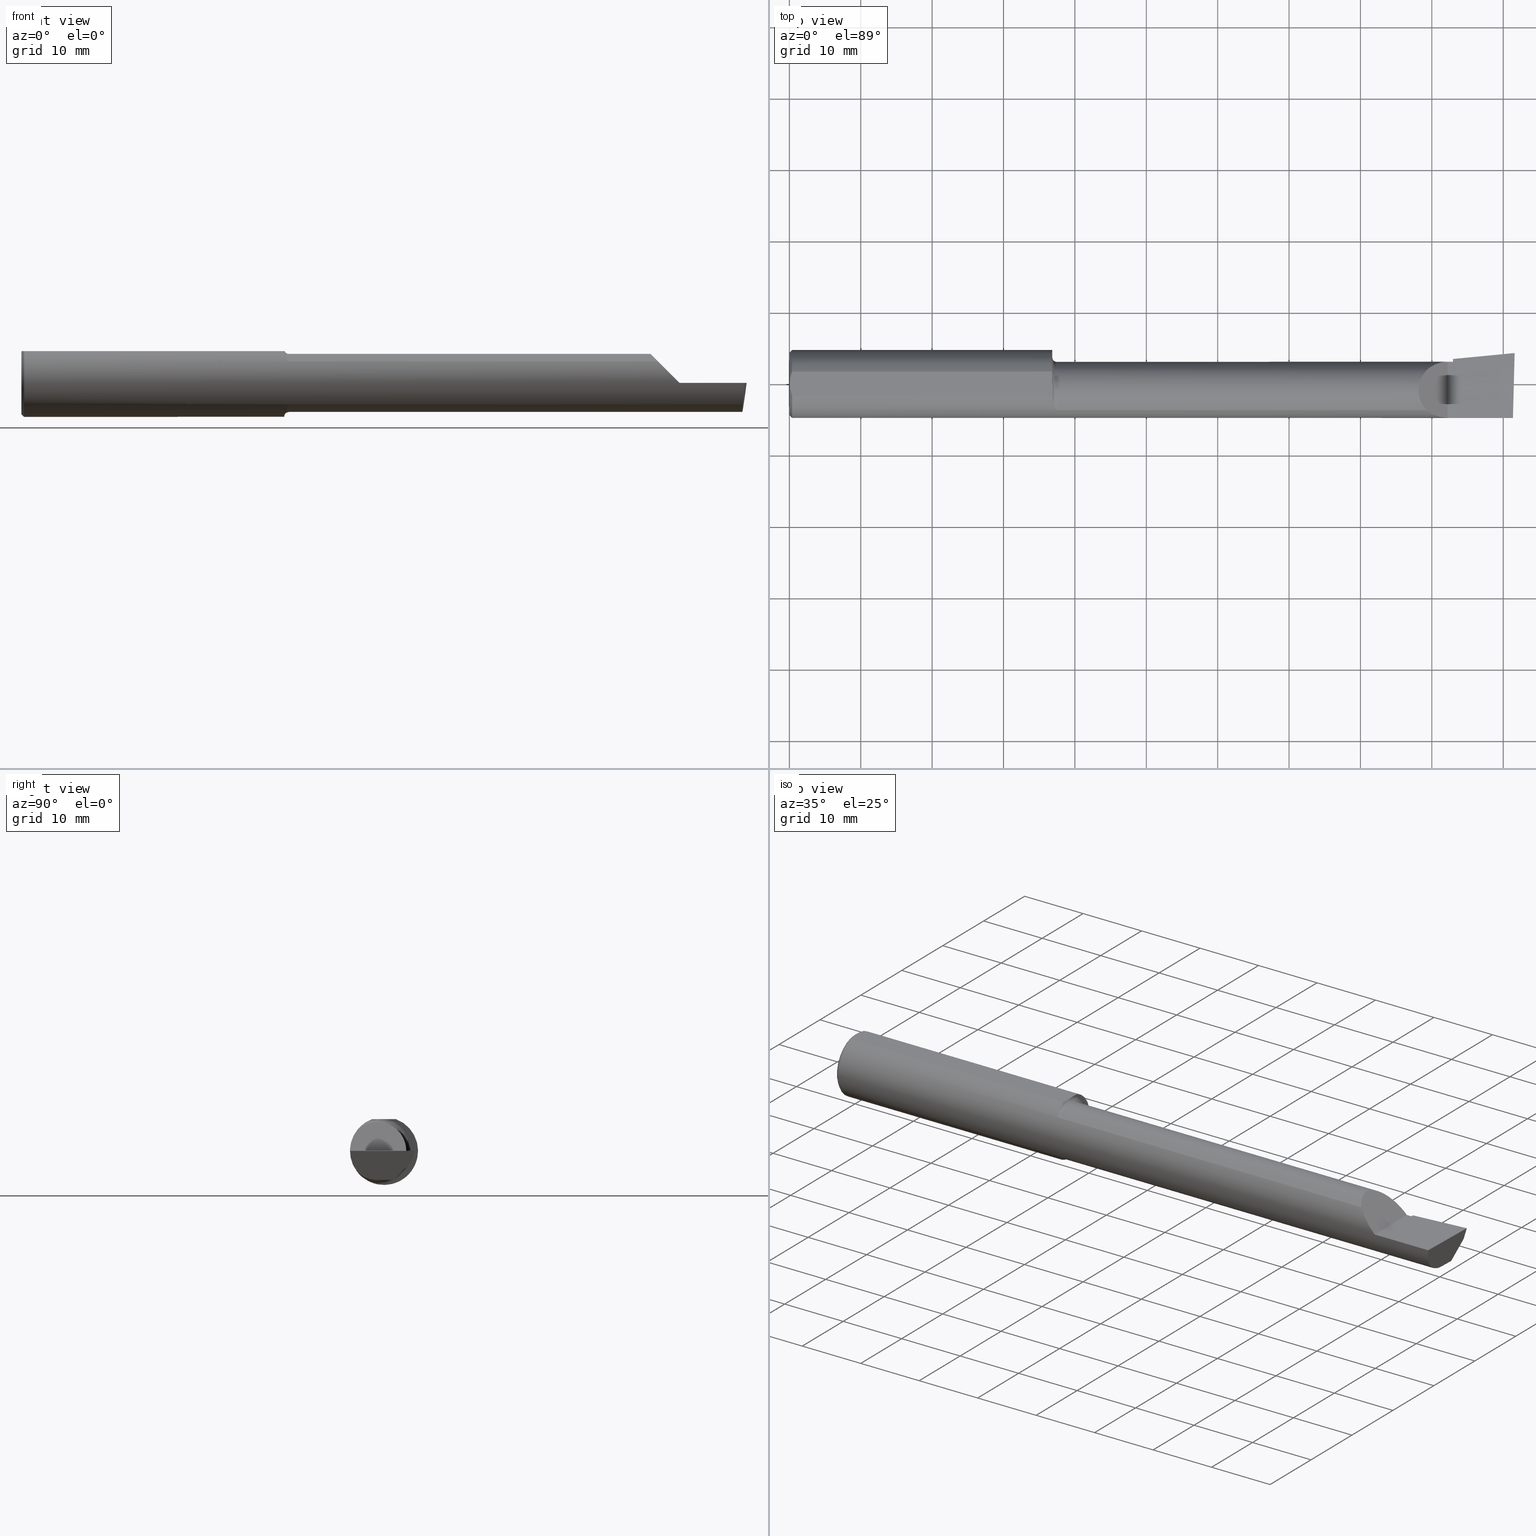
[diagram: canonical four-view strip — front | top / right | iso, engineering-drawing reading convention]
A machine part, canonical four-view strip (front | top / right | iso — engineering-drawing reading convention). The complete STEP part file that produces these views, byte-faithful:
ISO-10303-21;
HEADER;
FILE_DESCRIPTION (( 'STEP AP203' ),
    '1' );
FILE_NAME ('217540-B3602500.STEP',
    '2024-04-26T22:35:02',
    ( '' ),
    ( '' ),
    'SwSTEP 2.0',
    'SolidWorks 2022',
    '' );
FILE_SCHEMA (( 'CONFIG_CONTROL_DESIGN' ));
ENDSEC;

DATA;
#1 = ORIENTED_EDGE ( 'NONE', *, *, #440, .F. ) ;
#2 = CARTESIAN_POINT ( 'NONE',  ( 0.01499999999999999424, 0.000000000000000000, 0.000000000000000000 ) ) ;
#3 = ORIENTED_EDGE ( 'NONE', *, *, #588, .F. ) ;
#4 = CARTESIAN_POINT ( 'NONE',  ( 0.01125230581755086272, 0.05532998191409921329, 0.1753500000000000059 ) ) ;
#5 = AXIS2_PLACEMENT_3D ( 'NONE', #621, #263, #167 ) ;
#6 = ORIENTED_EDGE ( 'NONE', *, *, #487, .F. ) ;
#7 = CARTESIAN_POINT ( 'NONE',  ( 3.511965325165093521, -0.1454917112299462245, 0.1180346748349056230 ) ) ;
#8 = ORIENTED_EDGE ( 'NONE', *, *, #462, .F. ) ;
#9 = CARTESIAN_POINT ( 'NONE',  ( 1.450000000000000178, 0.06597272163553663527, 0.1753499999999999781 ) ) ;
#10 = CARTESIAN_POINT ( 'NONE',  ( 3.653138950307088795, 0.06907189645309849690, -0.1232356714654834345 ) ) ;
#11 = EDGE_LOOP ( 'NONE', ( #238, #1, #240 ) ) ;
#12 = LINE ( 'NONE', #464, #87 ) ;
#13 = AXIS2_PLACEMENT_3D ( 'NONE', #262, #421, #360 ) ;
#14 = DIRECTION ( 'NONE',  ( 0.9953961983671787417, 0.09584575252022450864, -8.704446866213619353E-17 ) ) ;
#15 = ORIENTED_EDGE ( 'NONE', *, *, #630, .F. ) ;
#16 = CARTESIAN_POINT ( 'NONE',  ( 4.000000000000000000, 0.2373500000000000332, 0.1753499999999999504 ) ) ;
#17 = CARTESIAN_POINT ( 'NONE',  ( 3.655646474132026924, 0.04303026584322402343, -0.1383725942388458752 ) ) ;
#18 = EDGE_CURVE ( 'NONE', #601, #157, #642, .T. ) ;
#19 = VERTEX_POINT ( 'NONE', #386 ) ;
#20 = CARTESIAN_POINT ( 'NONE',  ( 1.450000000000000178, 0.1476499999999997259, 0.000000000000000000 ) ) ;
#21 = CARTESIAN_POINT ( 'NONE',  ( 1.450000000000000622, 0.01439074984011678125, 0.1753499999999999781 ) ) ;
#22 = CARTESIAN_POINT ( 'NONE',  ( 1.458327409769773375, -0.1182546610979341717, 0.1455684145307624688 ) ) ;
#23 = LENGTH_MEASURE_WITH_UNIT ( LENGTH_MEASURE( 0.02539999999999999897 ), #216 );
#24 = DIRECTION ( 'NONE',  ( 0.06894566448119619773, -0.7160281025913032282, 0.6946583704589937014 ) ) ;
#25 = AXIS2_PLACEMENT_3D ( 'NONE', #279, #32, #227 ) ;
#26 = APPROVAL_PERSON_ORGANIZATION ( #393, #126, #392 ) ;
#27 = CARTESIAN_POINT ( 'NONE',  ( 1.474999999999999867, -0.1454917112299478343, 0.1180346748349037911 ) ) ;
#28 = CARTESIAN_POINT ( 'NONE',  ( 3.974646882977779239, -0.1156304438478838320, -0.1453804992321581224 ) ) ;
#29 = EDGE_CURVE ( 'NONE', #474, #651, #586, .T. ) ;
#30 = DIRECTION ( 'NONE',  ( 1.000000000000000000, -4.268512490100411279E-18, 0.000000000000000000 ) ) ;
#31 = DIRECTION ( 'NONE',  ( 1.000000000000000000, -4.268512490100411279E-18, 0.000000000000000000 ) ) ;
#32 = DIRECTION ( 'NONE',  ( -1.000000000000000000, 4.268512490100411279E-18, 0.000000000000000000 ) ) ;
#33 = PERSON_AND_ORGANIZATION_ROLE ( 'creator' ) ;
#34 = AXIS2_PLACEMENT_3D ( 'NONE', #435, #79, #485 ) ;
#35 = CARTESIAN_POINT ( 'NONE',  ( 1.474999999999999867, -0.1454917112299472515, -0.1180346748349042907 ) ) ;
#36 = EDGE_CURVE ( 'NONE', #358, #354, #172, .T. ) ;
#37 = COORDINATED_UNIVERSAL_TIME_OFFSET ( 8, 0, .BEHIND. ) ;
#38 =( BOUNDED_CURVE ( )  B_SPLINE_CURVE ( 3, ( #72, #270, #217, #634 ),
 .UNSPECIFIED., .F., .T. ) 
 B_SPLINE_CURVE_WITH_KNOTS ( ( 4, 4 ),
 ( 2.858349069045824198, 2.874607299638503033 ),
 .UNSPECIFIED. ) 
 CURVE ( )  GEOMETRIC_REPRESENTATION_ITEM ( )  RATIONAL_B_SPLINE_CURVE ( ( 1.000000000000000000, 0.9999779726161355242, 0.9999779726161355242, 1.000000000000000000 ) ) 
 REPRESENTATION_ITEM ( '' )  );
#39 = DIRECTION ( 'NONE',  ( 1.000000000000000000, 0.000000000000000000, 0.000000000000000000 ) ) ;
#40 = ORIENTED_EDGE ( 'NONE', *, *, #584, .T. ) ;
#41 = CARTESIAN_POINT ( 'NONE',  ( 1.450000000000000178, -0.03015080213903878134, -0.1849079544810674769 ) ) ;
#42 = CARTESIAN_POINT ( 'NONE',  ( 3.977259974483411398, 0.05296767626088370873, -0.1600499999999999701 ) ) ;
#43 = VECTOR ( 'NONE', #104, 39.37007874015748854 ) ;
#44 = EDGE_LOOP ( 'NONE', ( #298, #463, #92, #205, #453, #249 ) ) ;
#45 = APPROVAL_PERSON_ORGANIZATION ( #552, #295, #349 ) ;
#46 = CARTESIAN_POINT ( 'NONE',  ( 1.455627379275792554, -0.1060494212093238825, -0.1548887329701209292 ) ) ;
#47 = ADVANCED_FACE ( 'NONE', ( #242 ), #124, .F. ) ;
#48 = ORIENTED_EDGE ( 'NONE', *, *, #183, .F. ) ;
#49 = CYLINDRICAL_SURFACE ( 'NONE', #438, 0.1600499999999999423 ) ;
#50 = EDGE_LOOP ( 'NONE', ( #302, #171, #528 ) ) ;
#51 = DIRECTION ( 'NONE',  ( 0.7071067811865390240, 8.659560562355036396E-17, 0.7071067811865560104 ) ) ;
#52 = ORIENTED_EDGE ( 'NONE', *, *, #258, .F. ) ;
#53 = LINE ( 'NONE', #253, #266 ) ;
#54 = AXIS2_PLACEMENT_3D ( 'NONE', #299, #501, #504 ) ;
#55 = CARTESIAN_POINT ( 'NONE',  ( 1.467580983404113137, -0.1407350872998855973, 0.1236837232298104716 ) ) ;
#56 = LINE ( 'NONE', #208, #399 ) ;
#57 = PERSON ( 'UNSPECIFIED', 'UNSPECIFIED', 'UNSPECIFIED', ('UNSPECIFIED'), ('UNSPECIFIED'), ('UNSPECIFIED') ) ;
#58 = LINE ( 'NONE', #571, #288 ) ;
#59 = EDGE_CURVE ( 'NONE', #141, #69, #641, .T. ) ;
#60 = VERTEX_POINT ( 'NONE', #42 ) ;
#61 = CARTESIAN_POINT ( 'NONE',  ( 1.474999999999999867, -0.03739999999999999575, 0.000000000000000000 ) ) ;
#62 = CARTESIAN_POINT ( 'NONE',  ( 4.000000000000000000, -0.03740000000000000269, -0.1600499999999999701 ) ) ;
#63 = ORIENTED_EDGE ( 'NONE', *, *, #532, .F. ) ;
#64 = CARTESIAN_POINT ( 'NONE',  ( 0.003000000000000171366, 0.01127363201155561975, 0.1753499999999999781 ) ) ;
#65 = ADVANCED_FACE ( 'NONE', ( #652 ), #368, .F. ) ;
#66 = AXIS2_PLACEMENT_3D ( 'NONE', #241, #545, #193 ) ;
#67 = CARTESIAN_POINT ( 'NONE',  ( 3.648392528813626079, 0.1183653683724363026, -0.06000000000000001860 ) ) ;
#68 = LOCAL_TIME ( 15, 35, 2.000000000000000000, #596 ) ;
#69 = VERTEX_POINT ( 'NONE', #194 ) ;
#70 = CARTESIAN_POINT ( 'NONE',  ( 1.451116380138691264, -0.06597272163553656588, 0.1753499999999999781 ) ) ;
#71 = DIMENSIONAL_EXPONENTS ( 1.000000000000000000, 0.000000000000000000, 0.000000000000000000, 0.000000000000000000, 0.000000000000000000, 0.000000000000000000, 0.000000000000000000 ) ;
#72 = CARTESIAN_POINT ( 'NONE',  ( 3.649771696492880135, 0.1040421643832924459, -0.07490071184287706851 ) ) ;
#73 = CARTESIAN_POINT ( 'NONE',  ( 1.453931069367344620, -0.09745462642916734308, 0.1609342754328614566 ) ) ;
#74 = CARTESIAN_POINT ( 'NONE',  ( 6.831754240405861070E-19, 0.1226499999999999257, 1.790477306702064235E-16 ) ) ;
#75 = DIRECTION ( 'NONE',  ( 4.268512490100411279E-18, 1.000000000000000000, -3.732688574539098315E-34 ) ) ;
#76 = CARTESIAN_POINT ( 'NONE',  ( 3.629999999999999893, 0.1226499999999998147, -1.383850883036508279E-16 ) ) ;
#77 = AXIS2_PLACEMENT_3D ( 'NONE', #129, #635, #178 ) ;
#78 = CARTESIAN_POINT ( 'NONE',  ( 3.659999999999999698, -0.2500000000000000555, -1.410085000307074674E-16 ) ) ;
#79 = DIRECTION ( 'NONE',  ( -1.000000000000000000, -0.000000000000000000, -0.000000000000000000 ) ) ;
#80 = ORIENTED_EDGE ( 'NONE', *, *, #29, .T. ) ;
#81 = CARTESIAN_POINT ( 'NONE',  ( 1.470462485058697810, -0.1437494271365432619, 0.1201537477313796703 ) ) ;
#82 = PERSON_AND_ORGANIZATION ( #57, #334 ) ;
#83 = VERTEX_POINT ( 'NONE', #123 ) ;
#84 = CARTESIAN_POINT ( 'NONE',  ( 1.457485333659844340, -0.1155414972264656309, -0.1479248906558518484 ) ) ;
#85 = CC_DESIGN_DATE_AND_TIME_ASSIGNMENT ( #237, #543, ( #439 ) ) ;
#86 = ADVANCED_FACE ( 'NONE', ( #329 ), #589, .T. ) ;
#87 = VECTOR ( 'NONE', #408, 39.37007874015748854 ) ;
#88 =( GEOMETRIC_REPRESENTATION_CONTEXT ( 3 ) GLOBAL_UNCERTAINTY_ASSIGNED_CONTEXT ( ( #359 ) ) GLOBAL_UNIT_ASSIGNED_CONTEXT ( ( #222, #431, #380 ) ) REPRESENTATION_CONTEXT ( 'NONE', 'WORKASPACE' ) );
#89 = DIRECTION ( 'NONE',  ( 0.000000000000000000, 1.000000000000000000, 0.000000000000000000 ) ) ;
#90 = ADVANCED_FACE ( 'NONE', ( #498 ), #390, .F. ) ;
#91 = DIRECTION ( 'NONE',  ( 1.000000000000000000, 0.000000000000000000, 0.000000000000000000 ) ) ;
#92 = ORIENTED_EDGE ( 'NONE', *, *, #144, .F. ) ;
#93 = DIRECTION ( 'NONE',  ( 0.000000000000000000, 0.000000000000000000, 1.000000000000000000 ) ) ;
#94 = ADVANCED_FACE ( 'NONE', ( #530 ), #433, .F. ) ;
#95 = ORIENTED_EDGE ( 'NONE', *, *, #114, .T. ) ;
#96 = LINE ( 'NONE', #548, #243 ) ;
#97 = PERSON_AND_ORGANIZATION_ROLE ( 'classification_officer' ) ;
#98 = AXIS2_PLACEMENT_3D ( 'NONE', #107, #558, #620 ) ;
#99 = ORIENTED_EDGE ( 'NONE', *, *, #459, .T. ) ;
#100 = FACE_OUTER_BOUND ( 'NONE', #401, .T. ) ;
#101 = VERTEX_POINT ( 'NONE', #640 ) ;
#102 = LINE ( 'NONE', #115, #182 ) ;
#103 = ORIENTED_EDGE ( 'NONE', *, *, #114, .F. ) ;
#104 = DIRECTION ( 'NONE',  ( 0.9953961983671800740, 0.09584575252021031166, -0.000000000000000000 ) ) ;
#105 = APPLICATION_CONTEXT ( 'configuration controlled 3d designs of mechanical parts and assemblies' ) ;
#106 = EDGE_LOOP ( 'NONE', ( #319, #525, #605, #207, #339 ) ) ;
#107 = CARTESIAN_POINT ( 'NONE',  ( 0.01499999999999999424, 0.000000000000000000, 0.000000000000000000 ) ) ;
#108 = EDGE_CURVE ( 'NONE', #157, #550, #482, .T. ) ;
#109 = CARTESIAN_POINT ( 'NONE',  ( 1.451116380138691264, -0.06597272163553656588, 0.1753499999999999781 ) ) ;
#110 = VERTEX_POINT ( 'NONE', #229 ) ;
#111 = CYLINDRICAL_SURFACE ( 'NONE', #345, 0.1873499999999999888 ) ;
#112 = CARTESIAN_POINT ( 'NONE',  ( 1.474999999999999867, -0.1454917112299472515, -0.1180346748349042907 ) ) ;
#113 = ORIENTED_EDGE ( 'NONE', *, *, #637, .F. ) ;
#114 = EDGE_CURVE ( 'NONE', #110, #101, #223, .T. ) ;
#115 = CARTESIAN_POINT ( 'NONE',  ( 1.450000000000000178, 0.2373500000000000332, 0.1753499999999999504 ) ) ;
#116 = CARTESIAN_POINT ( 'NONE',  ( 1.451446793517542799, -0.01487494471388619253, 0.1753500000000000059 ) ) ;
#117 = ORIENTED_EDGE ( 'NONE', *, *, #158, .T. ) ;
#118 = CARTESIAN_POINT ( 'NONE',  ( 3.977223734188806592, -0.1454917112299466964, -0.1180346748349052066 ) ) ;
#119 = FACE_OUTER_BOUND ( 'NONE', #557, .T. ) ;
#120 = VERTEX_POINT ( 'NONE', #132 ) ;
#121 = PLANE ( 'NONE',  #567 ) ;
#122 = CARTESIAN_POINT ( 'NONE',  ( 1.451790586316525244, -0.05136925160306254207, 0.1753499999999999781 ) ) ;
#123 = CARTESIAN_POINT ( 'NONE',  ( 3.655646474132026924, 0.04303026584322402343, -0.1383725942388458752 ) ) ;
#124 = PLANE ( 'NONE',  #490 ) ;
#125 = CARTESIAN_POINT ( 'NONE',  ( 2.567499999999999893, -0.1454917112299466964, -0.1180346748349052066 ) ) ;
#126 = APPROVAL ( #442, 'UNSPECIFIED' ) ;
#127 = CLOSED_SHELL ( 'NONE', ( #156, #86, #561, #403, #304, #94, #281, #274, #65, #650, #626, #348, #90, #47, #251, #580, #377 ) ) ;
#128 = LOCAL_TIME ( 15, 35, 2.000000000000000000, #603 ) ;
#129 = CARTESIAN_POINT ( 'NONE',  ( 3.629999999999999893, -0.2500000000000000555, -1.383850883036508279E-16 ) ) ;
#130 = CARTESIAN_POINT ( 'NONE',  ( 3.658567235719207833, 0.04367857120546568550, -0.1379942341395748728 ) ) ;
#131 = ORIENTED_EDGE ( 'NONE', *, *, #204, .F. ) ;
#132 = CARTESIAN_POINT ( 'NONE',  ( 0.01499999999999997863, -0.06597272163553657975, 0.1753499999999999781 ) ) ;
#133 = ORIENTED_EDGE ( 'NONE', *, *, #462, .T. ) ;
#134 = EDGE_CURVE ( 'NONE', #309, #152, #38, .T. ) ;
#135 = CARTESIAN_POINT ( 'NONE',  ( 3.659999999999999698, -0.03740000000000000269, -0.1600499999999999701 ) ) ;
#136 = PERSON_AND_ORGANIZATION ( #57, #334 ) ;
#137 = CARTESIAN_POINT ( 'NONE',  ( 3.659999999999999698, 0.04400172171466123355, -0.1378033461200739995 ) ) ;
#138 = VECTOR ( 'NONE', #75, 39.37007874015748143 ) ;
#139 = LOCAL_TIME ( 15, 35, 2.000000000000000000, #549 ) ;
#140 = APPLICATION_PROTOCOL_DEFINITION ( 'international standard', 'config_control_design', 1994, #142 ) ;
#141 = VERTEX_POINT ( 'NONE', #519 ) ;
#142 = APPLICATION_CONTEXT ( 'configuration controlled 3d designs of mechanical parts and assemblies' ) ;
#143 = CARTESIAN_POINT ( 'NONE',  ( 1.473475335450381341, -0.1454917112299474458, -0.1180346748349042491 ) ) ;
#144 = EDGE_CURVE ( 'NONE', #19, #413, #375, .T. ) ;
#145 = CALENDAR_DATE ( 2024, 26, 4 ) ;
#146 = VERTEX_POINT ( 'NONE', #372 ) ;
#147 = LINE ( 'NONE', #414, #617 ) ;
#148 = PERSON_AND_ORGANIZATION ( #57, #334 ) ;
#149 = ORIENTED_EDGE ( 'NONE', *, *, #324, .T. ) ;
#150 = CARTESIAN_POINT ( 'NONE',  ( 0.000000000000000000, 0.000000000000000000, 0.000000000000000000 ) ) ;
#151 = CIRCLE ( 'NONE', #578, 0.1873499999999999888 ) ;
#152 = VERTEX_POINT ( 'NONE', #275 ) ;
#153 = CARTESIAN_POINT ( 'NONE',  ( 3.586590019116435712, -0.1873500000000000165, 0.04340998088356438217 ) ) ;
#154 = ORIENTED_EDGE ( 'NONE', *, *, #423, .F. ) ;
#155 = CARTESIAN_POINT ( 'NONE',  ( 3.659999999999999698, 0.02241901528670498314, -0.1600499999999999701 ) ) ;
#156 = ADVANCED_FACE ( 'NONE', ( #522 ), #162, .T. ) ;
#157 = VERTEX_POINT ( 'NONE', #426 ) ;
#158 = EDGE_CURVE ( 'NONE', #651, #247, #177, .T. ) ;
#159 = PLANE ( 'NONE',  #201 ) ;
#160 = ORIENTED_EDGE ( 'NONE', *, *, #416, .F. ) ;
#161 = DIRECTION ( 'NONE',  ( 2.972230601656783961E-18, 0.6963153109074927682, 0.7177360153954945865 ) ) ;
#162 = CONICAL_SURFACE ( 'NONE', #300, 0.1873499999999999888, 0.7853981633974602694 ) ;
#163 = DIRECTION ( 'NONE',  ( -1.000000000000000000, 4.268512490100411279E-18, -0.000000000000000000 ) ) ;
#164 = EDGE_CURVE ( 'NONE', #141, #601, #365, .T. ) ;
#165 = ORIENTED_EDGE ( 'NONE', *, *, #353, .F. ) ;
#166 = CARTESIAN_POINT ( 'NONE',  ( 0.003000000000000218638, 2.334609556160449697E-17, 0.1753499999999999781 ) ) ;
#167 = DIRECTION ( 'NONE',  ( 0.000000000000000000, 0.000000000000000000, -1.000000000000000000 ) ) ;
#168 = ORIENTED_EDGE ( 'NONE', *, *, #200, .F. ) ;
#169 = CARTESIAN_POINT ( 'NONE',  ( 0.008227791779583753379, -0.04447712204611812409, 0.1753499999999999781 ) ) ;
#170 = DIRECTION ( 'NONE',  ( -0.1240019227988168882, -0.3022330132596584562, -0.9451342385281487068 ) ) ;
#171 = ORIENTED_EDGE ( 'NONE', *, *, #511, .T. ) ;
#172 = CIRCLE ( 'NONE', #544, 0.1600500000000001921 ) ;
#173 = DIRECTION ( 'NONE',  ( 1.253267817926297723E-18, 0.2936076258024060137, 0.9559260233253795702 ) ) ;
#174 = PRODUCT_DEFINITION_FORMATION_WITH_SPECIFIED_SOURCE ( 'ANY', '', #366, .NOT_KNOWN. ) ;
#175 = DIRECTION ( 'NONE',  ( 0.000000000000000000, -1.000000000000000000, 0.000000000000000000 ) ) ;
#176 = DIRECTION ( 'NONE',  ( 0.000000000000000000, 0.000000000000000000, 1.000000000000000000 ) ) ;
#177 = LINE ( 'NONE', #260, #457 ) ;
#178 = DIRECTION ( 'NONE',  ( -0.7071067811865507924, 0.000000000000000000, 0.7071067811865443531 ) ) ;
#179 = CC_DESIGN_PERSON_AND_ORGANIZATION_ASSIGNMENT ( #148, #495, ( #174 ) ) ;
#180 = DIRECTION ( 'NONE',  ( 0.9953961983671800740, 0.09584575252021097780, 2.028036391170091876E-14 ) ) ;
#181 = DIRECTION ( 'NONE',  ( -4.268512490100411279E-18, -1.000000000000000000, 0.000000000000000000 ) ) ;
#182 = VECTOR ( 'NONE', #306, 39.37007874015748143 ) ;
#183 = EDGE_CURVE ( 'NONE', #612, #651, #318, .T. ) ;
#184 = APPLICATION_PROTOCOL_DEFINITION ( 'international standard', 'config_control_design', 1994, #105 ) ;
#185 = EDGE_LOOP ( 'NONE', ( #15, #215, #614, #312, #505, #427, #484, #6, #165, #188, #424, #445 ) ) ;
#186 = DIRECTION ( 'NONE',  ( -4.268512490100411279E-18, -1.000000000000000000, 0.000000000000000000 ) ) ;
#187 = PERSON_AND_ORGANIZATION ( #57, #334 ) ;
#188 = ORIENTED_EDGE ( 'NONE', *, *, #144, .T. ) ;
#189 = CARTESIAN_POINT ( 'NONE',  ( 3.985293537526797270, -0.1873499999999999888, -0.04340998088356431972 ) ) ;
#190 = VECTOR ( 'NONE', #212, 39.37007874015748143 ) ;
#191 = DATE_AND_TIME ( #145, #68 ) ;
#192 = ORIENTED_EDGE ( 'NONE', *, *, #271, .T. ) ;
#193 = DIRECTION ( 'NONE',  ( 0.1219104985251813905, 0.000000000000000000, 0.9925410975618802478 ) ) ;
#194 = CARTESIAN_POINT ( 'NONE',  ( 1.450000000000000178, -0.03015080213903878134, -0.1849079544810674769 ) ) ;
#195 = EDGE_LOOP ( 'NONE', ( #99, #133, #373, #437, #264, #326, #503, #500 ) ) ;
#196 = CARTESIAN_POINT ( 'NONE',  ( 1.451697995486590953, -0.07541755249017040308, -0.1718998534213994900 ) ) ;
#197 = ORIENTED_EDGE ( 'NONE', *, *, #231, .T. ) ;
#198 = CARTESIAN_POINT ( 'NONE',  ( 3.990625440078222397, -0.1873499999999999888, -1.699186010220949670E-16 ) ) ;
#199 = CC_DESIGN_PERSON_AND_ORGANIZATION_ASSIGNMENT ( #136, #33, ( #439 ) ) ;
#200 = EDGE_CURVE ( 'NONE', #293, #247, #515, .T. ) ;
#201 = AXIS2_PLACEMENT_3D ( 'NONE', #16, #259, #573 ) ;
#202 = ORIENTED_EDGE ( 'NONE', *, *, #324, .F. ) ;
#203 = DIRECTION ( 'NONE',  ( -1.000000000000000000, -0.000000000000000000, -0.000000000000000000 ) ) ;
#204 = EDGE_CURVE ( 'NONE', #553, #474, #381, .T. ) ;
#205 = ORIENTED_EDGE ( 'NONE', *, *, #396, .F. ) ;
#206 = LINE ( 'NONE', #265, #470 ) ;
#207 = ORIENTED_EDGE ( 'NONE', *, *, #18, .T. ) ;
#208 = CARTESIAN_POINT ( 'NONE',  ( 0.01499999999999999424, 0.000000000000000000, -0.1873499999999999888 ) ) ;
#209 = EDGE_CURVE ( 'NONE', #247, #369, #58, .T. ) ;
#210 = PLANE ( 'NONE',  #480 ) ;
#211 = EDGE_LOOP ( 'NONE', ( #560, #508, #192, #149 ) ) ;
#212 = DIRECTION ( 'NONE',  ( -0.1053106618240596676, -0.6976485211320203605, -0.7086580314005362924 ) ) ;
#213 = VECTOR ( 'NONE', #30, 39.37007874015748143 ) ;
#214 = CARTESIAN_POINT ( 'NONE',  ( 3.999999999999977351, 0.1706500000000262807, 9.240475838569370243E-14 ) ) ;
#215 = ORIENTED_EDGE ( 'NONE', *, *, #327, .T. ) ;
#216 =( LENGTH_UNIT ( ) NAMED_UNIT ( * ) SI_UNIT ( $, .METRE. ) );
#217 = CARTESIAN_POINT ( 'NONE',  ( 3.656688791929345150, 0.1032241022547694537, -0.07643046986498638895 ) ) ;
#218 = ORIENTED_EDGE ( 'NONE', *, *, #209, .T. ) ;
#219 =( BOUNDED_CURVE ( )  B_SPLINE_CURVE ( 3, ( #633, #383, #486, #76 ),
 .UNSPECIFIED., .F., .F. ) 
 B_SPLINE_CURVE_WITH_KNOTS ( ( 4, 4 ),
 ( 5.541729662751388119, 7.853981633974482790 ),
 .UNSPECIFIED. ) 
 CURVE ( )  GEOMETRIC_REPRESENTATION_ITEM ( )  RATIONAL_B_SPLINE_CURVE ( ( 1.000000000000000000, 0.6019254882129727591, 0.6019254882129727591, 1.000000000000000000 ) ) 
 REPRESENTATION_ITEM ( '' )  );
#220 = CARTESIAN_POINT ( 'NONE',  ( 1.451049074448707454, -0.007621984361079512695, 0.1753499999999999504 ) ) ;
#221 = ORIENTED_EDGE ( 'NONE', *, *, #183, .T. ) ;
#222 =( CONVERSION_BASED_UNIT ( 'INCH', #23 ) LENGTH_UNIT ( ) NAMED_UNIT ( #71 ) );
#223 = CIRCLE ( 'NONE', #34, 0.1723499999999996424 ) ;
#224 = LOCAL_TIME ( 15, 35, 2.000000000000000000, #292 ) ;
#225 = DIRECTION ( 'NONE',  ( 0.000000000000000000, -0.6963153109074927682, -0.7177360153954945865 ) ) ;
#226 = PRODUCT_RELATED_PRODUCT_CATEGORY ( 'detail', '', ( #366 ) ) ;
#227 = DIRECTION ( 'NONE',  ( -4.268512490100411279E-18, -1.000000000000000000, 0.000000000000000000 ) ) ;
#228 = CARTESIAN_POINT ( 'NONE',  ( 0.000000000000000000, 0.000000000000000000, 0.000000000000000000 ) ) ;
#229 = CARTESIAN_POINT ( 'NONE',  ( 0.000000000000000000, 2.202527268266512578E-17, 0.1723499999999996424 ) ) ;
#230 = DIRECTION ( 'NONE',  ( 4.268512490100411279E-18, 1.000000000000000000, 0.000000000000000000 ) ) ;
#231 = EDGE_CURVE ( 'NONE', #309, #83, #409, .T. ) ;
#232 = DATE_TIME_ROLE ( 'classification_date' ) ;
#233 = B_SPLINE_CURVE_WITH_KNOTS ( 'NONE', 3,
 ( #166, #64, #506, #316, #4, #313 ),
 .UNSPECIFIED., .F., .F.,
 ( 4, 2, 4 ),
 ( 0.003480013901590607410, 0.004330767971208083697, 0.005181522040825559984 ),
 .UNSPECIFIED. ) ;
#234 = AXIS2_PLACEMENT_3D ( 'NONE', #436, #449, #479 ) ;
#235 = VECTOR ( 'NONE', #332, 39.37007874015748143 ) ;
#236 = DIRECTION ( 'NONE',  ( 0.000000000000000000, 0.000000000000000000, -1.000000000000000000 ) ) ;
#237 = DATE_AND_TIME ( #341, #224 ) ;
#238 = ORIENTED_EDGE ( 'NONE', *, *, #568, .F. ) ;
#239 = CARTESIAN_POINT ( 'NONE',  ( 1.462916881138098146, -0.1325294370633287866, -0.1325423110575141561 ) ) ;
#240 = ORIENTED_EDGE ( 'NONE', *, *, #385, .T. ) ;
#241 = CARTESIAN_POINT ( 'NONE',  ( 3.972657716785287008, -0.1026153499216718584, -0.1643501480114538116 ) ) ;
#242 = FACE_OUTER_BOUND ( 'NONE', #407, .T. ) ;
#243 = VECTOR ( 'NONE', #406, 39.37007874015748143 ) ;
#244 =( BOUNDED_CURVE ( )  B_SPLINE_CURVE ( 3, ( #118, #28, #531, #535 ),
 .UNSPECIFIED., .F., .F. ) 
 B_SPLINE_CURVE_WITH_KNOTS ( ( 4, 4 ),
 ( 5.751779107031163463, 6.493234751459365128 ),
 .UNSPECIFIED. ) 
 CURVE ( )  GEOMETRIC_REPRESENTATION_ITEM ( )  RATIONAL_B_SPLINE_CURVE ( ( 1.000000000000000000, 0.9547092712975351336, 0.9547092712975351336, 1.000000000000000000 ) ) 
 REPRESENTATION_ITEM ( '' )  );
#245 = DATE_AND_TIME ( #493, #492 ) ;
#246 = MANIFOLD_SOLID_BREP ( 'Extrude7', #127 ) ;
#247 = VERTEX_POINT ( 'NONE', #214 ) ;
#248 = CARTESIAN_POINT ( 'NONE',  ( 1.450336700870086482, -0.05340758954924600815, -0.1799583179751508555 ) ) ;
#249 = ORIENTED_EDGE ( 'NONE', *, *, #296, .F. ) ;
#250 = CARTESIAN_POINT ( 'NONE',  ( 0.000000000000000000, -0.03739999999999998881, 0.000000000000000000 ) ) ;
#251 = ADVANCED_FACE ( 'NONE', ( #581 ), #210, .F. ) ;
#252 = ORIENTED_EDGE ( 'NONE', *, *, #396, .T. ) ;
#253 = CARTESIAN_POINT ( 'NONE',  ( 1.565719721143680372E-32, -0.1873499999999999610, 1.790477306702064235E-16 ) ) ;
#254 = VECTOR ( 'NONE', #311, 39.37007874015748143 ) ;
#255 = ORIENTED_EDGE ( 'NONE', *, *, #134, .F. ) ;
#256 = DIRECTION ( 'NONE',  ( 0.06658005426110759351, -0.6914603011188222847, -0.7193398003386547446 ) ) ;
#257 = CARTESIAN_POINT ( 'NONE',  ( 1.468558384071251721, -0.1420205060553834386, 0.1222022583412203656 ) ) ;
#258 = EDGE_CURVE ( 'NONE', #474, #152, #629, .T. ) ;
#259 = DIRECTION ( 'NONE',  ( 0.000000000000000000, -1.438723400918613551E-16, -1.000000000000000000 ) ) ;
#260 = CARTESIAN_POINT ( 'NONE',  ( 1.839318137477267578, -0.03739999999999999575, 1.820477161534314746E-17 ) ) ;
#261 = ORIENTED_EDGE ( 'NONE', *, *, #258, .T. ) ;
#262 = CARTESIAN_POINT ( 'NONE',  ( 1.450000000000000178, 0.000000000000000000, 0.000000000000000000 ) ) ;
#263 = DIRECTION ( 'NONE',  ( 1.000000000000000000, 0.000000000000000000, 0.000000000000000000 ) ) ;
#264 = ORIENTED_EDGE ( 'NONE', *, *, #588, .T. ) ;
#265 = CARTESIAN_POINT ( 'NONE',  ( 3.974910817315460587, -0.03674301662998945284, -0.1600499999999999701 ) ) ;
#266 = VECTOR ( 'NONE', #203, 39.37007874015748143 ) ;
#267 = CARTESIAN_POINT ( 'NONE',  ( 1.451479449616799977, -0.05867400124853481419, 0.1753500000000000059 ) ) ;
#268 = VERTEX_POINT ( 'NONE', #112 ) ;
#269 = DIRECTION ( 'NONE',  ( -1.000000000000000000, 4.268512490100411279E-18, 0.000000000000000000 ) ) ;
#270 = CARTESIAN_POINT ( 'NONE',  ( 3.653279282324394472, 0.1036362422309855952, -0.07566725339342778023 ) ) ;
#271 = EDGE_CURVE ( 'NONE', #379, #354, #314, .T. ) ;
#272 = ORIENTED_EDGE ( 'NONE', *, *, #487, .T. ) ;
#273 = CARTESIAN_POINT ( 'NONE',  ( 0.01499999999999997863, -0.06597272163553657975, 0.1753499999999999781 ) ) ;
#274 = ADVANCED_FACE ( 'NONE', ( #119 ), #321, .T. ) ;
#275 = CARTESIAN_POINT ( 'NONE',  ( 3.659999999999999698, 0.1028057716897404633, -0.07719031082256629095 ) ) ;
#276 = DIRECTION ( 'NONE',  ( -1.000000000000000000, 4.268512490100411279E-18, -0.000000000000000000 ) ) ;
#277 = DIRECTION ( 'NONE',  ( -0.09584575252021097780, 0.9953961983671800740, 0.000000000000000000 ) ) ;
#278 = AXIS2_PLACEMENT_3D ( 'NONE', #388, #284, #593 ) ;
#279 = CARTESIAN_POINT ( 'NONE',  ( 3.659999999999999698, 0.1379117236128366286, 0.000000000000000000 ) ) ;
#280 = CARTESIAN_POINT ( 'NONE',  ( 0.01499999999999999424, 0.000000000000000000, -0.1873499999999999888 ) ) ;
#281 = ADVANCED_FACE ( 'NONE', ( #473 ), #527, .F. ) ;
#282 = CARTESIAN_POINT ( 'NONE',  ( 1.472867149423749966, -0.1451640434845497540, 0.1184394021563235089 ) ) ;
#283 = DIRECTION ( 'NONE',  ( -1.000000000000000000, -0.000000000000000000, -0.000000000000000000 ) ) ;
#284 = DIRECTION ( 'NONE',  ( -0.000000000000000000, 0.000000000000000000, 1.000000000000000000 ) ) ;
#285 = APPROVAL_DATE_TIME ( #647, #126 ) ;
#286 = ORIENTED_EDGE ( 'NONE', *, *, #559, .T. ) ;
#287 = DIRECTION ( 'NONE',  ( 0.000000000000000000, 0.000000000000000000, 1.000000000000000000 ) ) ;
#288 = VECTOR ( 'NONE', #170, 39.37007874015748143 ) ;
#289 = MECHANICAL_CONTEXT ( 'NONE', #142, 'mechanical' ) ;
#290 = VERTEX_POINT ( 'NONE', #551 ) ;
#291 = CARTESIAN_POINT ( 'NONE',  ( 3.974893613600461340, -0.03740000000000000269, -0.1600499999999999701 ) ) ;
#292 = COORDINATED_UNIVERSAL_TIME_OFFSET ( 8, 0, .BEHIND. ) ;
#293 = VERTEX_POINT ( 'NONE', #585 ) ;
#294 = FACE_OUTER_BOUND ( 'NONE', #305, .T. ) ;
#295 = APPROVAL ( #600, 'UNSPECIFIED' ) ;
#296 = EDGE_CURVE ( 'NONE', #601, #120, #96, .T. ) ;
#297 = APPROVAL_STATUS ( 'not_yet_approved' ) ;
#298 = ORIENTED_EDGE ( 'NONE', *, *, #164, .F. ) ;
#299 = CARTESIAN_POINT ( 'NONE',  ( 4.000000000000000000, -0.2500000000000000555, -1.707404996040164512E-16 ) ) ;
#300 = AXIS2_PLACEMENT_3D ( 'NONE', #325, #574, #428 ) ;
#301 = APPROVAL_ROLE ( '' ) ;
#302 = ORIENTED_EDGE ( 'NONE', *, *, #468, .T. ) ;
#303 = PLANE ( 'NONE',  #54 ) ;
#304 = ADVANCED_FACE ( 'NONE', ( #649 ), #303, .F. ) ;
#305 = EDGE_LOOP ( 'NONE', ( #547, #622, #8, #307, #168, #572 ) ) ;
#306 = DIRECTION ( 'NONE',  ( -4.268512490100411279E-18, -1.000000000000000000, 1.438723400918613551E-16 ) ) ;
#307 = ORIENTED_EDGE ( 'NONE', *, *, #209, .F. ) ;
#308 = CIRCLE ( 'NONE', #333, 0.1600499999999996925 ) ;
#309 = VERTEX_POINT ( 'NONE', #656 ) ;
#310 = LINE ( 'NONE', #615, #555 ) ;
#311 = DIRECTION ( 'NONE',  ( 1.000000000000000000, -4.268512490100411279E-18, 0.000000000000000000 ) ) ;
#312 = ORIENTED_EDGE ( 'NONE', *, *, #440, .T. ) ;
#313 = CARTESIAN_POINT ( 'NONE',  ( 0.01499999999999999424, 0.06597272163553663527, 0.1753499999999999781 ) ) ;
#314 = LINE ( 'NONE', #62, #343 ) ;
#315 = VERTEX_POINT ( 'NONE', #397 ) ;
#316 = CARTESIAN_POINT ( 'NONE',  ( 0.008244775919947423121, 0.04453482769755854470, 0.1753499999999999504 ) ) ;
#317 =( BOUNDED_CURVE ( )  B_SPLINE_CURVE ( 3, ( #340, #598, #189, #198 ),
 .UNSPECIFIED., .F., .F. ) 
 B_SPLINE_CURVE_WITH_KNOTS ( ( 4, 4 ),
 ( 0.6791649766279211908, 1.360746882515117662 ),
 .UNSPECIFIED. ) 
 CURVE ( )  GEOMETRIC_REPRESENTATION_ITEM ( )  RATIONAL_B_SPLINE_CURVE ( ( 1.000000000000000000, 0.9616603987079550553, 0.9616603987079550553, 1.000000000000000000 ) ) 
 REPRESENTATION_ITEM ( '' )  );
#318 = LINE ( 'NONE', #384, #512 ) ;
#319 = ORIENTED_EDGE ( 'NONE', *, *, #330, .T. ) ;
#320 = CARTESIAN_POINT ( 'NONE',  ( 0.004093196532652184846, -0.02240707710020816562, 0.1753499999999999504 ) ) ;
#321 = CONICAL_SURFACE ( 'NONE', #5, 0.1873499999999999888, 0.7853981633974602694 ) ;
#322 = APPROVAL ( #297, 'UNSPECIFIED' ) ;
#323 = CC_DESIGN_APPROVAL ( #126, ( #556 ) ) ;
#324 = EDGE_CURVE ( 'NONE', #354, #496, #554, .T. ) ;
#325 = CARTESIAN_POINT ( 'NONE',  ( 0.01499999999999999424, 0.000000000000000000, 0.000000000000000000 ) ) ;
#326 = ORIENTED_EDGE ( 'NONE', *, *, #538, .F. ) ;
#327 = EDGE_CURVE ( 'NONE', #315, #293, #317, .T. ) ;
#328 = CARTESIAN_POINT ( 'NONE',  ( 3.649771696492880135, 0.1040421643832924459, -0.07490071184287706851 ) ) ;
#329 = FACE_OUTER_BOUND ( 'NONE', #654, .T. ) ;
#330 = EDGE_CURVE ( 'NONE', #268, #69, #391, .T. ) ;
#331 = CARTESIAN_POINT ( 'NONE',  ( 1.474999999999999867, -0.03739999999999998881, 0.000000000000000000 ) ) ;
#332 = DIRECTION ( 'NONE',  ( -1.000000000000000000, 4.268512490100411279E-18, -0.000000000000000000 ) ) ;
#333 = AXIS2_PLACEMENT_3D ( 'NONE', #61, #461, #565 ) ;
#334 = ORGANIZATION ( 'UNSPECIFIED', 'UNSPECIFIED', '' ) ;
#335 = CARTESIAN_POINT ( 'NONE',  ( 1.471175406146074893, -0.1442942897112287071, 0.1194974872566931939 ) ) ;
#336 = DIRECTION ( 'NONE',  ( -4.268512490100411279E-18, -1.000000000000000000, 0.000000000000000000 ) ) ;
#337 = CARTESIAN_POINT ( 'NONE',  ( 3.659999999999999698, -0.03740000000000000269, 0.000000000000000000 ) ) ;
#338 = SHAPE_DEFINITION_REPRESENTATION ( #616, #599 ) ;
#339 = ORIENTED_EDGE ( 'NONE', *, *, #423, .T. ) ;
#340 = CARTESIAN_POINT ( 'NONE',  ( 3.977223734188806592, -0.1454917112299466964, -0.1180346748349052066 ) ) ;
#341 = CALENDAR_DATE ( 2024, 26, 4 ) ;
#342 = PLANE ( 'NONE',  #66 ) ;
#343 = VECTOR ( 'NONE', #422, 39.37007874015748143 ) ;
#344 = EDGE_CURVE ( 'NONE', #101, #110, #430, .T. ) ;
#345 = AXIS2_PLACEMENT_3D ( 'NONE', #228, #283, #176 ) ;
#346 = CC_DESIGN_PERSON_AND_ORGANIZATION_ASSIGNMENT ( #82, #97, ( #556 ) ) ;
#347 = CARTESIAN_POINT ( 'NONE',  ( 1.452713316750944506, -0.08594842947873670980, -0.1668827936309212612 ) ) ;
#348 = ADVANCED_FACE ( 'NONE', ( #100 ), #49, .T. ) ;
#349 = APPROVAL_ROLE ( '' ) ;
#350 = EDGE_LOOP ( 'NONE', ( #63, #489, #520, #625, #131, #471 ) ) ;
#351 = CARTESIAN_POINT ( 'NONE',  ( 0.000000000000000000, 0.000000000000000000, 0.000000000000000000 ) ) ;
#352 = SECURITY_CLASSIFICATION_LEVEL ( 'unclassified' ) ;
#353 = EDGE_CURVE ( 'NONE', #19, #648, #151, .T. ) ;
#354 = VERTEX_POINT ( 'NONE', #595 ) ;
#355 = DIRECTION ( 'NONE',  ( -1.000000000000000000, -0.000000000000000000, -0.000000000000000000 ) ) ;
#356 = VECTOR ( 'NONE', #256, 39.37007874015748143 ) ;
#357 = CC_DESIGN_SECURITY_CLASSIFICATION ( #556, ( #174 ) ) ;
#358 = VERTEX_POINT ( 'NONE', #137 ) ;
#359 = UNCERTAINTY_MEASURE_WITH_UNIT (LENGTH_MEASURE( 1.000000000000000082E-05 ), #222, 'distance_accuracy_value', 'NONE');
#360 = DIRECTION ( 'NONE',  ( 0.000000000000000000, 1.000000000000000000, 0.000000000000000000 ) ) ;
#361 = ORIENTED_EDGE ( 'NONE', *, *, #517, .T. ) ;
#362 = CARTESIAN_POINT ( 'NONE',  ( 3.985884137426715768, 0.1100999211749778550, -0.1020161577657761470 ) ) ;
#363 = ORIENTED_EDGE ( 'NONE', *, *, #108, .T. ) ;
#364 = LINE ( 'NONE', #456, #597 ) ;
#365 = B_SPLINE_CURVE_WITH_KNOTS ( 'NONE', 3,
 ( #628, #21, #475, #220, #116, #618, #432, #122, #267, #109 ),
 .UNSPECIFIED., .F., .F.,
 ( 4, 2, 2, 2, 4 ),
 ( 0.01227444304810770825, 0.01283060897602141849, 0.01338677490393512873, 0.01394294083184883723, 0.01449910675976254747 ),
 .UNSPECIFIED. ) ;
#366 = PRODUCT ( '217540-B3602500', '217540-B3602500', '', ( #289 ) ) ;
#367 = B_SPLINE_CURVE_WITH_KNOTS ( 'NONE', 3,
 ( #273, #387, #169, #320, #481, #627 ),
 .UNSPECIFIED., .F., .F.,
 ( 4, 2, 4 ),
 ( 0.001779942938356815062, 0.002629978419973711019, 0.003480013901590607410 ),
 .UNSPECIFIED. ) ;
#368 = TOROIDAL_SURFACE ( 'NONE', #502, 0.1850499999999997147, 0.02499999999999993894 ) ;
#369 = VERTEX_POINT ( 'NONE', #494 ) ;
#370 = LINE ( 'NONE', #362, #190 ) ;
#371 = CC_DESIGN_DATE_AND_TIME_ASSIGNMENT ( #245, #232, ( #556 ) ) ;
#372 = CARTESIAN_POINT ( 'NONE',  ( 0.003000000000000218638, 2.334609556160449697E-17, 0.1753499999999999781 ) ) ;
#373 = ORIENTED_EDGE ( 'NONE', *, *, #447, .F. ) ;
#374 = CARTESIAN_POINT ( 'NONE',  ( 3.648392528813626079, 0.1183653683724363026, -0.06000000000000001860 ) ) ;
#375 = LINE ( 'NONE', #469, #566 ) ;
#376 = ORIENTED_EDGE ( 'NONE', *, *, #568, .T. ) ;
#377 = ADVANCED_FACE ( 'NONE', ( #294 ), #342, .F. ) ;
#378 = LINE ( 'NONE', #125, #235 ) ;
#379 = VERTEX_POINT ( 'NONE', #291 ) ;
#380 =( NAMED_UNIT ( * ) SI_UNIT ( $, .STERADIAN. ) SOLID_ANGLE_UNIT ( ) );
#381 = LINE ( 'NONE', #74, #254 ) ;
#382 = CARTESIAN_POINT ( 'NONE',  ( 1.473888626799698010, -0.1454917112299473347, 0.1180346748349044711 ) ) ;
#383 = CARTESIAN_POINT ( 'NONE',  ( 3.402393788885675008, -0.02584108761840239049, 0.2276062111143223043 ) ) ;
#384 = CARTESIAN_POINT ( 'NONE',  ( 3.659999999999999698, 0.1379117236128411805, -1.397310505067048373E-15 ) ) ;
#385 = EDGE_CURVE ( 'NONE', #290, #553, #446, .T. ) ;
#386 = CARTESIAN_POINT ( 'NONE',  ( 0.01499999999999999424, 0.06597272163553663527, 0.1753499999999999781 ) ) ;
#387 = CARTESIAN_POINT ( 'NONE',  ( 0.01128414053810045115, -0.05542038647445819699, 0.1753499999999999781 ) ) ;
#388 = CARTESIAN_POINT ( 'NONE',  ( 4.000000000000000000, -0.03740000000000000269, -0.1600499999999999701 ) ) ;
#389 = CIRCLE ( 'NONE', #98, 0.1873499999999999888 ) ;
#390 = PLANE ( 'NONE',  #278 ) ;
#391 = B_SPLINE_CURVE_WITH_KNOTS ( 'NONE', 3,
 ( #35, #143, #441, #542, #497, #645, #491, #239, #443, #84, #46, #347, #196, #248, #452, #41 ),
 .UNSPECIFIED., .F., .F.,
 ( 4, 2, 2, 2, 2, 2, 2, 4 ),
 ( 1.966851289224426280E-07, 0.0001144729266691570557, 0.0002287491682093916888, 0.0004573016512898712819, 0.0009144066174508314439, 0.001828616549772751985, 0.002742826482094671767, 0.003657036414416591982 ),
 .UNSPECIFIED. ) ;
#392 = APPROVAL_ROLE ( '' ) ;
#393 = PERSON_AND_ORGANIZATION ( #57, #334 ) ;
#394 = EDGE_CURVE ( 'NONE', #496, #358, #147, .T. ) ;
#395 = DIRECTION ( 'NONE',  ( -1.000000000000000000, -0.000000000000000000, -0.000000000000000000 ) ) ;
#396 = EDGE_CURVE ( 'NONE', #146, #19, #233, .T. ) ;
#397 = CARTESIAN_POINT ( 'NONE',  ( 3.977223734188806592, -0.1454917112299466964, -0.1180346748349052066 ) ) ;
#398 = VECTOR ( 'NONE', #89, 39.37007874015748143 ) ;
#399 = VECTOR ( 'NONE', #417, 39.37007874015748143 ) ;
#400 = APPROVAL_DATE_TIME ( #191, #322 ) ;
#401 = EDGE_LOOP ( 'NONE', ( #113, #415, #154, #363, #376, #451, #261, #255, #197, #3, #594, #575 ) ) ;
#402 = CARTESIAN_POINT ( 'NONE',  ( 3.629999999999999893, -0.2500000000000000555, -1.383850883036508279E-16 ) ) ;
#403 = ADVANCED_FACE ( 'NONE', ( #606 ), #159, .F. ) ;
#404 = APPROVAL_DATE_TIME ( #540, #295 ) ;
#405 = ORIENTED_EDGE ( 'NONE', *, *, #559, .F. ) ;
#406 = DIRECTION ( 'NONE',  ( -1.000000000000000000, -0.000000000000000000, -0.000000000000000000 ) ) ;
#407 = EDGE_LOOP ( 'NONE', ( #117, #218, #516, #221 ) ) ;
#408 = DIRECTION ( 'NONE',  ( 0.9953961983671800740, 0.09584575252021028391, -6.700811952580377798E-18 ) ) ;
#409 =( BOUNDED_CURVE ( )  B_SPLINE_CURVE ( 3, ( #328, #478, #10, #17 ),
 .UNSPECIFIED., .F., .F. ) 
 B_SPLINE_CURVE_WITH_KNOTS ( ( 4, 4 ),
 ( 0.4870072742240331709, 1.044271234405846016 ),
 .UNSPECIFIED. ) 
 CURVE ( )  GEOMETRIC_REPRESENTATION_ITEM ( )  RATIONAL_B_SPLINE_CURVE ( ( 1.000000000000000000, 0.9742883992832892526, 0.9742883992832892526, 1.000000000000000000 ) ) 
 REPRESENTATION_ITEM ( '' )  );
#410 = AXIS2_PLACEMENT_3D ( 'NONE', #150, #355, #287 ) ;
#411 = ORIENTED_EDGE ( 'NONE', *, *, #353, .T. ) ;
#412 = LINE ( 'NONE', #610, #356 ) ;
#413 = VERTEX_POINT ( 'NONE', #9 ) ;
#414 = CARTESIAN_POINT ( 'NONE',  ( 3.659999999999999698, 0.1584045145940419508, -0.01988118725737532053 ) ) ;
#415 = ORIENTED_EDGE ( 'NONE', *, *, #630, .T. ) ;
#416 = EDGE_CURVE ( 'NONE', #152, #612, #364, .T. ) ;
#417 = DIRECTION ( 'NONE',  ( 0.7071067811865390240, 0.000000000000000000, -0.7071067811865560104 ) ) ;
#418 = DIRECTION ( 'NONE',  ( 0.000000000000000000, -1.000000000000000000, 0.000000000000000000 ) ) ;
#419 = CIRCLE ( 'NONE', #13, 0.1873499999999999888 ) ;
#420 = ORIENTED_EDGE ( 'NONE', *, *, #231, .F. ) ;
#421 = DIRECTION ( 'NONE',  ( 1.000000000000000000, -4.268512490100411279E-18, 0.000000000000000000 ) ) ;
#422 = DIRECTION ( 'NONE',  ( -1.000000000000000000, 5.691349986800549142E-18, -0.000000000000000000 ) ) ;
#423 = EDGE_CURVE ( 'NONE', #157, #268, #308, .T. ) ;
#424 = ORIENTED_EDGE ( 'NONE', *, *, #468, .F. ) ;
#425 = CARTESIAN_POINT ( 'NONE',  ( 3.659999999999999698, 0.1194830407249524162, -0.06000000000000002554 ) ) ;
#426 = CARTESIAN_POINT ( 'NONE',  ( 1.474999999999999867, -0.1454917112299478343, 0.1180346748349037911 ) ) ;
#427 = ORIENTED_EDGE ( 'NONE', *, *, #18, .F. ) ;
#428 = DIRECTION ( 'NONE',  ( 0.000000000000000000, 0.000000000000000000, -1.000000000000000000 ) ) ;
#429 = CARTESIAN_POINT ( 'NONE',  ( 1.460055759795567898, -0.1247930883238203975, 0.1399914093379783786 ) ) ;
#430 = CIRCLE ( 'NONE', #410, 0.1723499999999996424 ) ;
#431 =( NAMED_UNIT ( * ) PLANE_ANGLE_UNIT ( ) SI_UNIT ( $, .RADIAN. ) );
#432 = CARTESIAN_POINT ( 'NONE',  ( 1.452020598872754364, -0.03676412395315125509, 0.1753500000000000059 ) ) ;
#433 = PLANE ( 'NONE',  #77 ) ;
#434 = CARTESIAN_POINT ( 'NONE',  ( 3.657116054444792930, 0.04335475124612595682, -0.1381839842950835506 ) ) ;
#435 = CARTESIAN_POINT ( 'NONE',  ( 0.000000000000000000, 0.000000000000000000, 0.000000000000000000 ) ) ;
#436 = CARTESIAN_POINT ( 'NONE',  ( 1.450000000000000178, -0.03739999999999999575, 0.000000000000000000 ) ) ;
#437 = ORIENTED_EDGE ( 'NONE', *, *, #394, .T. ) ;
#438 = AXIS2_PLACEMENT_3D ( 'NONE', #250, #454, #186 ) ;
#439 = PRODUCT_DEFINITION ( 'UNKNOWN', '', #174, #655 ) ;
#440 = EDGE_CURVE ( 'NONE', #290, #550, #563, .T. ) ;
#441 = CARTESIAN_POINT ( 'NONE',  ( 1.472144995725004568, -0.1448851833857939253, -0.1187833539262089927 ) ) ;
#442 = APPROVAL_STATUS ( 'not_yet_approved' ) ;
#443 = CARTESIAN_POINT ( 'NONE',  ( 1.461427394884100117, -0.1284293148232743820, -0.1365241029388000737 ) ) ;
#444 = CARTESIAN_POINT ( 'NONE',  ( 0.000000000000000000, 0.000000000000000000, 0.000000000000000000 ) ) ;
#445 = ORIENTED_EDGE ( 'NONE', *, *, #330, .F. ) ;
#446 = LINE ( 'NONE', #402, #523 ) ;
#447 = EDGE_CURVE ( 'NONE', #496, #60, #12, .T. ) ;
#448 = APPROVAL_PERSON_ORGANIZATION ( #450, #322, #301 ) ;
#449 = DIRECTION ( 'NONE',  ( -1.000000000000000000, 4.268512490100411279E-18, -0.000000000000000000 ) ) ;
#450 = PERSON_AND_ORGANIZATION ( #57, #334 ) ;
#451 = ORIENTED_EDGE ( 'NONE', *, *, #204, .T. ) ;
#452 = CARTESIAN_POINT ( 'NONE',  ( 1.450000000000000178, -0.04186526254461851726, -0.1829978128711758356 ) ) ;
#453 = ORIENTED_EDGE ( 'NONE', *, *, #584, .F. ) ;
#454 = DIRECTION ( 'NONE',  ( -1.000000000000000000, 4.268512490100411279E-18, -0.000000000000000000 ) ) ;
#455 = EDGE_LOOP ( 'NONE', ( #103, #361, #252, #411, #405 ) ) ;
#456 = CARTESIAN_POINT ( 'NONE',  ( 3.659999999999999698, 0.1584045145940419508, -0.01988118725737532053 ) ) ;
#457 = VECTOR ( 'NONE', #14, 39.37007874015748143 ) ;
#458 = CC_DESIGN_APPROVAL ( #322, ( #439 ) ) ;
#459 = EDGE_CURVE ( 'NONE', #612, #369, #467, .T. ) ;
#460 = ORIENTED_EDGE ( 'NONE', *, *, #538, .T. ) ;
#461 = DIRECTION ( 'NONE',  ( -1.000000000000000000, 4.268512490100411279E-18, -0.000000000000000000 ) ) ;
#462 = EDGE_CURVE ( 'NONE', #369, #60, #370, .T. ) ;
#463 = ORIENTED_EDGE ( 'NONE', *, *, #511, .F. ) ;
#464 = CARTESIAN_POINT ( 'NONE',  ( 3.991169618080469217, 0.05430702260361117834, -0.1600499999999999701 ) ) ;
#465 = CARTESIAN_POINT ( 'NONE',  ( 3.988992440003198858, -0.2497117568972564428, -1.697779208712868360E-16 ) ) ;
#466 = ORIENTED_EDGE ( 'NONE', *, *, #517, .F. ) ;
#467 = LINE ( 'NONE', #374, #43 ) ;
#468 = EDGE_CURVE ( 'NONE', #69, #413, #419, .T. ) ;
#469 = CARTESIAN_POINT ( 'NONE',  ( 0.000000000000000000, 0.06597272163553663527, 0.1753499999999999781 ) ) ;
#470 = VECTOR ( 'NONE', #472, 39.37007874015748143 ) ;
#471 = ORIENTED_EDGE ( 'NONE', *, *, #385, .F. ) ;
#472 = DIRECTION ( 'NONE',  ( -0.02617694830780135234, -0.9996573249755592583, 0.000000000000000000 ) ) ;
#473 = FACE_OUTER_BOUND ( 'NONE', #541, .T. ) ;
#474 = VERTEX_POINT ( 'NONE', #518 ) ;
#475 = CARTESIAN_POINT ( 'NONE',  ( 1.450322286002908356, 0.007053356780977244889, 0.1753499999999999781 ) ) ;
#476 = CARTESIAN_POINT ( 'NONE',  ( 1.451116380138691264, -0.06597272163553656588, 0.1753499999999999781 ) ) ;
#477 = FACE_OUTER_BOUND ( 'NONE', #619, .T. ) ;
#478 = CARTESIAN_POINT ( 'NONE',  ( 3.651129012372396954, 0.08994590001130231549, -0.1015200335213659877 ) ) ;
#479 = DIRECTION ( 'NONE',  ( 0.000000000000000000, -1.000000000000000000, 0.000000000000000000 ) ) ;
#480 = AXIS2_PLACEMENT_3D ( 'NONE', #67, #24, #225 ) ;
#481 = CARTESIAN_POINT ( 'NONE',  ( 0.003000000000000172234, -0.01126410975715120416, 0.1753500000000000059 ) ) ;
#482 = LINE ( 'NONE', #533, #213 ) ;
#483 = FACE_OUTER_BOUND ( 'NONE', #50, .T. ) ;
#484 = ORIENTED_EDGE ( 'NONE', *, *, #296, .T. ) ;
#485 = DIRECTION ( 'NONE',  ( 0.000000000000000000, 0.000000000000000000, 1.000000000000000000 ) ) ;
#486 = CARTESIAN_POINT ( 'NONE',  ( 3.467758842172328215, 0.1226499999999999396, 0.1622411578276699295 ) ) ;
#487 = EDGE_CURVE ( 'NONE', #648, #120, #389, .T. ) ;
#488 = CALENDAR_DATE ( 2024, 26, 4 ) ;
#489 = ORIENTED_EDGE ( 'NONE', *, *, #200, .T. ) ;
#490 = AXIS2_PLACEMENT_3D ( 'NONE', #539, #536, #582 ) ;
#491 = CARTESIAN_POINT ( 'NONE',  ( 1.465943198097122702, -0.1383011673991937640, -0.1264147259943145529 ) ) ;
#492 = LOCAL_TIME ( 15, 35, 2.000000000000000000, #37 ) ;
#493 = CALENDAR_DATE ( 2024, 26, 4 ) ;
#494 = CARTESIAN_POINT ( 'NONE',  ( 3.992127980275534060, 0.1514633278254498838, -0.06000000000000002554 ) ) ;
#495 = PERSON_AND_ORGANIZATION_ROLE ( 'design_supplier' ) ;
#496 = VERTEX_POINT ( 'NONE', #155 ) ;
#497 = CARTESIAN_POINT ( 'NONE',  ( 1.469258671360876400, -0.1426776373316546165, -0.1214281201482008965 ) ) ;
#498 = FACE_OUTER_BOUND ( 'NONE', #211, .T. ) ;
#499 = DIRECTION ( 'NONE',  ( 0.000000000000000000, 0.000000000000000000, 1.000000000000000000 ) ) ;
#500 = ORIENTED_EDGE ( 'NONE', *, *, #416, .T. ) ;
#501 = DIRECTION ( 'NONE',  ( -8.744705756855574331E-17, 0.000000000000000000, -1.000000000000000000 ) ) ;
#502 = AXIS2_PLACEMENT_3D ( 'NONE', #331, #276, #181 ) ;
#503 = ORIENTED_EDGE ( 'NONE', *, *, #134, .T. ) ;
#504 = DIRECTION ( 'NONE',  ( -1.000000000000000000, 0.000000000000000000, 8.744705756855574331E-17 ) ) ;
#505 = ORIENTED_EDGE ( 'NONE', *, *, #108, .F. ) ;
#506 = CARTESIAN_POINT ( 'NONE',  ( 0.004115035183746295483, 0.02255629470626744487, 0.1753499999999999781 ) ) ;
#507 = EDGE_CURVE ( 'NONE', #60, #379, #206, .T. ) ;
#508 = ORIENTED_EDGE ( 'NONE', *, *, #507, .T. ) ;
#509 = CARTESIAN_POINT ( 'NONE',  ( 3.629999999999999893, -0.1873499999999999888, -1.383850883036508279E-16 ) ) ;
#510 = CC_DESIGN_PERSON_AND_ORGANIZATION_ASSIGNMENT ( #187, #653, ( #174 ) ) ;
#511 = EDGE_CURVE ( 'NONE', #413, #141, #102, .T. ) ;
#512 = VECTOR ( 'NONE', #173, 39.37007874015748143 ) ;
#513 = CARTESIAN_POINT ( 'NONE',  ( 1.464940665466612169, -0.1367234982206466665, 0.1281512008975638772 ) ) ;
#514 = CARTESIAN_POINT ( 'NONE',  ( 3.629999999999999893, 0.1226499999999998147, -1.383850883036508279E-16 ) ) ;
#515 = LINE ( 'NONE', #465, #607 ) ;
#516 = ORIENTED_EDGE ( 'NONE', *, *, #459, .F. ) ;
#517 = EDGE_CURVE ( 'NONE', #110, #146, #310, .T. ) ;
#518 = CARTESIAN_POINT ( 'NONE',  ( 3.659999999999999698, 0.1226500000000001755, 1.790477306702067193E-16 ) ) ;
#519 = CARTESIAN_POINT ( 'NONE',  ( 1.450000000000000178, 0.02172596722253180429, 0.1753499999999999781 ) ) ;
#520 = ORIENTED_EDGE ( 'NONE', *, *, #158, .F. ) ;
#521 = DIRECTION ( 'NONE',  ( 2.972230601656783961E-18, 0.6963153109074927682, 0.7177360153954945865 ) ) ;
#522 = FACE_OUTER_BOUND ( 'NONE', #455, .T. ) ;
#523 = VECTOR ( 'NONE', #602, 39.37007874015748143 ) ;
#524 = AXIS2_PLACEMENT_3D ( 'NONE', #583, #180, #277 ) ;
#525 = ORIENTED_EDGE ( 'NONE', *, *, #59, .F. ) ;
#526 = CARTESIAN_POINT ( 'NONE',  ( 3.655646474132026924, 0.04303026584322402343, -0.1383725942388458752 ) ) ;
#527 = PLANE ( 'NONE',  #534 ) ;
#528 = ORIENTED_EDGE ( 'NONE', *, *, #59, .T. ) ;
#529 = DIRECTION ( 'NONE',  ( 0.02617694830780135234, 0.9996573249755592583, -2.255099122138069919E-18 ) ) ;
#530 = FACE_OUTER_BOUND ( 'NONE', #11, .T. ) ;
#531 = CARTESIAN_POINT ( 'NONE',  ( 3.973833329693933880, -0.07789060880782654184, -0.1600499999999999701 ) ) ;
#532 = EDGE_CURVE ( 'NONE', #293, #290, #53, .T. ) ;
#533 = CARTESIAN_POINT ( 'NONE',  ( 2.567499999999999893, -0.1454917112299466964, 0.1180346748349052066 ) ) ;
#534 = AXIS2_PLACEMENT_3D ( 'NONE', #351, #39, #236 ) ;
#535 = CARTESIAN_POINT ( 'NONE',  ( 3.974893613600461340, -0.03740000000000000269, -0.1600499999999999701 ) ) ;
#536 = DIRECTION ( 'NONE',  ( 0.09165774897393343112, -0.9519021185660614393, 0.2923717047227303301 ) ) ;
#537 = CARTESIAN_POINT ( 'NONE',  ( 3.659999999999999698, 0.1379117236128366286, 0.000000000000000000 ) ) ;
#538 = EDGE_CURVE ( 'NONE', #309, #83, #412, .T. ) ;
#539 = CARTESIAN_POINT ( 'NONE',  ( 3.646634349579650713, 0.1366247578553253517, -6.829619984160658046E-17 ) ) ;
#540 = DATE_AND_TIME ( #644, #128 ) ;
#541 = EDGE_LOOP ( 'NONE', ( #604, #95 ) ) ;
#542 = CARTESIAN_POINT ( 'NONE',  ( 1.470088327122037741, -0.1434986192849199982, -0.1204547541528176863 ) ) ;
#543 = DATE_TIME_ROLE ( 'creation_date' ) ;
#544 = AXIS2_PLACEMENT_3D ( 'NONE', #337, #638, #175 ) ;
#545 = DIRECTION ( 'NONE',  ( -0.9922060308645621607, 0.02598182930462236695, 0.1218693434050462515 ) ) ;
#546 = PERSON_AND_ORGANIZATION ( #57, #334 ) ;
#547 = ORIENTED_EDGE ( 'NONE', *, *, #637, .T. ) ;
#548 = CARTESIAN_POINT ( 'NONE',  ( 0.000000000000000000, -0.06597272163553657975, 0.1753499999999999781 ) ) ;
#549 = COORDINATED_UNIVERSAL_TIME_OFFSET ( 8, 0, .BEHIND. ) ;
#550 = VERTEX_POINT ( 'NONE', #562 ) ;
#551 = CARTESIAN_POINT ( 'NONE',  ( 3.629999999999999893, -0.1873499999999999888, -1.383850883036508279E-16 ) ) ;
#552 = PERSON_AND_ORGANIZATION ( #57, #334 ) ;
#553 = VERTEX_POINT ( 'NONE', #514 ) ;
#554 = LINE ( 'NONE', #135, #398 ) ;
#555 = VECTOR ( 'NONE', #51, 39.37007874015748143 ) ;
#556 = SECURITY_CLASSIFICATION ( '', '', #352 ) ;
#557 = EDGE_LOOP ( 'NONE', ( #466, #564, #286, #272, #40 ) ) ;
#558 = DIRECTION ( 'NONE',  ( -1.000000000000000000, -0.000000000000000000, -0.000000000000000000 ) ) ;
#559 = EDGE_CURVE ( 'NONE', #101, #648, #56, .T. ) ;
#560 = ORIENTED_EDGE ( 'NONE', *, *, #447, .T. ) ;
#561 = ADVANCED_FACE ( 'NONE', ( #570 ), #111, .T. ) ;
#562 = CARTESIAN_POINT ( 'NONE',  ( 3.511965325165093521, -0.1454917112299462245, 0.1180346748349056230 ) ) ;
#563 =( BOUNDED_CURVE ( )  B_SPLINE_CURVE ( 3, ( #509, #153, #613, #7 ),
 .UNSPECIFIED., .F., .F. ) 
 B_SPLINE_CURVE_WITH_KNOTS ( ( 4, 4 ),
 ( 4.712388980384689674, 5.393970886271889142 ),
 .UNSPECIFIED. ) 
 CURVE ( )  GEOMETRIC_REPRESENTATION_ITEM ( )  RATIONAL_B_SPLINE_CURVE ( ( 1.000000000000000000, 0.9616603987079548332, 0.9616603987079548332, 1.000000000000000000 ) ) 
 REPRESENTATION_ITEM ( '' )  );
#564 = ORIENTED_EDGE ( 'NONE', *, *, #344, .F. ) ;
#565 = DIRECTION ( 'NONE',  ( 0.000000000000000000, -1.000000000000000000, 0.000000000000000000 ) ) ;
#566 = VECTOR ( 'NONE', #624, 39.37007874015748143 ) ;
#567 = AXIS2_PLACEMENT_3D ( 'NONE', #20, #31, #230 ) ;
#568 = EDGE_CURVE ( 'NONE', #550, #553, #219, .T. ) ;
#569 = EDGE_LOOP ( 'NONE', ( #160, #52, #80, #48 ) ) ;
#570 = FACE_OUTER_BOUND ( 'NONE', #185, .T. ) ;
#571 = CARTESIAN_POINT ( 'NONE',  ( 3.993291301099660018, 0.1542987190042930390, -0.05113324764279480322 ) ) ;
#572 = ORIENTED_EDGE ( 'NONE', *, *, #327, .F. ) ;
#573 = DIRECTION ( 'NONE',  ( 0.000000000000000000, 1.000000000000000000, -1.438723400918613551E-16 ) ) ;
#574 = DIRECTION ( 'NONE',  ( 1.000000000000000000, 0.000000000000000000, 0.000000000000000000 ) ) ;
#575 = ORIENTED_EDGE ( 'NONE', *, *, #271, .F. ) ;
#576 = PLANE ( 'NONE',  #524 ) ;
#577 = CARTESIAN_POINT ( 'NONE',  ( 3.659999999999999698, -0.03740000000000000269, 0.000000000000000000 ) ) ;
#578 = AXIS2_PLACEMENT_3D ( 'NONE', #2, #395, #93 ) ;
#579 = CARTESIAN_POINT ( 'NONE',  ( 1.452180260693407998, -0.08231188685414686512, 0.1692026421515573364 ) ) ;
#580 = ADVANCED_FACE ( 'NONE', ( #477 ), #576, .T. ) ;
#581 = FACE_OUTER_BOUND ( 'NONE', #195, .T. ) ;
#582 = DIRECTION ( 'NONE',  ( 0.000000000000000000, -0.2936076258024060137, -0.9559260233253795702 ) ) ;
#583 = CARTESIAN_POINT ( 'NONE',  ( 3.652201917153905963, 0.07880335782617552132, -0.1900000000000001132 ) ) ;
#584 = EDGE_CURVE ( 'NONE', #120, #146, #367, .T. ) ;
#585 = CARTESIAN_POINT ( 'NONE',  ( 3.990625440078222397, -0.1873499999999999888, -1.699186010220949670E-16 ) ) ;
#586 = LINE ( 'NONE', #78, #138 ) ;
#587 = CARTESIAN_POINT ( 'NONE',  ( 3.659999999999999698, 0.04400172171466123355, -0.1378033461200739995 ) ) ;
#588 = EDGE_CURVE ( 'NONE', #358, #83, #611, .T. ) ;
#589 = PLANE ( 'NONE',  #25 ) ;
#590 = AXIS2_PLACEMENT_3D ( 'NONE', #577, #163, #418 ) ;
#591 = AXIS2_PLACEMENT_3D ( 'NONE', #444, #499, #91 ) ;
#592 = ORIENTED_EDGE ( 'NONE', *, *, #394, .F. ) ;
#593 = DIRECTION ( 'NONE',  ( 1.000000000000000000, 0.000000000000000000, 0.000000000000000000 ) ) ;
#594 = ORIENTED_EDGE ( 'NONE', *, *, #36, .T. ) ;
#595 = CARTESIAN_POINT ( 'NONE',  ( 3.659999999999999698, -0.03740000000000000269, -0.1600499999999999701 ) ) ;
#596 = COORDINATED_UNIVERSAL_TIME_OFFSET ( 8, 0, .BEHIND. ) ;
#597 = VECTOR ( 'NONE', #521, 39.37007874015748854 ) ;
#598 = CARTESIAN_POINT ( 'NONE',  ( 3.980648201915105489, -0.1728409665178087251, -0.08432347972837178629 ) ) ;
#599 = ADVANCED_BREP_SHAPE_REPRESENTATION ( '217540-B3602500', ( #246, #591 ), #88 ) ;
#600 = APPROVAL_STATUS ( 'not_yet_approved' ) ;
#601 = VERTEX_POINT ( 'NONE', #70 ) ;
#602 = DIRECTION ( 'NONE',  ( -0.000000000000000000, 1.000000000000000000, -0.000000000000000000 ) ) ;
#603 = COORDINATED_UNIVERSAL_TIME_OFFSET ( 8, 0, .BEHIND. ) ;
#604 = ORIENTED_EDGE ( 'NONE', *, *, #344, .T. ) ;
#605 = ORIENTED_EDGE ( 'NONE', *, *, #164, .T. ) ;
#606 = FACE_OUTER_BOUND ( 'NONE', #44, .T. ) ;
#607 = VECTOR ( 'NONE', #529, 39.37007874015748143 ) ;
#608 = AXIS2_PLACEMENT_3D ( 'NONE', #537, #269, #336 ) ;
#609 = ORIENTED_EDGE ( 'NONE', *, *, #36, .F. ) ;
#610 = CARTESIAN_POINT ( 'NONE',  ( 3.648392528813626079, 0.1183653683724363026, -0.06000000000000001860 ) ) ;
#611 =( BOUNDED_CURVE ( )  B_SPLINE_CURVE ( 3, ( #587, #130, #434, #526 ),
 .UNSPECIFIED., .F., .F. ) 
 B_SPLINE_CURVE_WITH_KNOTS ( ( 4, 4 ),
 ( 3.408578007541087196, 3.415613029227634989 ),
 .UNSPECIFIED. ) 
 CURVE ( )  GEOMETRIC_REPRESENTATION_ITEM ( )  RATIONAL_B_SPLINE_CURVE ( ( 1.000000000000000000, 0.9999958757100749773, 0.9999958757100749773, 1.000000000000000000 ) ) 
 REPRESENTATION_ITEM ( '' )  );
#612 = VERTEX_POINT ( 'NONE', #425 ) ;
#613 = CARTESIAN_POINT ( 'NONE',  ( 3.545676520271627385, -0.1728409665178086418, 0.08432347972837209160 ) ) ;
#614 = ORIENTED_EDGE ( 'NONE', *, *, #532, .T. ) ;
#615 = CARTESIAN_POINT ( 'NONE',  ( 0.01499999999999999424, 2.294375778202566330E-17, 0.1873499999999999888 ) ) ;
#616 = PRODUCT_DEFINITION_SHAPE ( 'NONE', 'NONE',  #439 ) ;
#617 = VECTOR ( 'NONE', #161, 39.37007874015748854 ) ;
#618 = CARTESIAN_POINT ( 'NONE',  ( 1.451936435452952701, -0.02946557294850932207, 0.1753499999999999504 ) ) ;
#619 = EDGE_LOOP ( 'NONE', ( #460, #420 ) ) ;
#620 = DIRECTION ( 'NONE',  ( 0.000000000000000000, 0.000000000000000000, 1.000000000000000000 ) ) ;
#621 = CARTESIAN_POINT ( 'NONE',  ( 0.01499999999999999424, 0.000000000000000000, 0.000000000000000000 ) ) ;
#622 = ORIENTED_EDGE ( 'NONE', *, *, #507, .F. ) ;
#623 = FACE_OUTER_BOUND ( 'NONE', #569, .T. ) ;
#624 = DIRECTION ( 'NONE',  ( 1.000000000000000000, 0.000000000000000000, 0.000000000000000000 ) ) ;
#625 = ORIENTED_EDGE ( 'NONE', *, *, #29, .F. ) ;
#626 = ADVANCED_FACE ( 'NONE', ( #623 ), #639, .T. ) ;
#627 = CARTESIAN_POINT ( 'NONE',  ( 0.003000000000000218638, 2.334609556160449697E-17, 0.1753499999999999781 ) ) ;
#628 = CARTESIAN_POINT ( 'NONE',  ( 1.450000000000000178, 0.02172596722253180429, 0.1753499999999999781 ) ) ;
#629 = CIRCLE ( 'NONE', #590, 0.1600500000000001921 ) ;
#630 = EDGE_CURVE ( 'NONE', #315, #268, #378, .T. ) ;
#631 = CC_DESIGN_APPROVAL ( #295, ( #174 ) ) ;
#632 = CARTESIAN_POINT ( 'NONE',  ( 1.463610562096348655, -0.1338335382286875708, 0.1311728947444859572 ) ) ;
#633 = CARTESIAN_POINT ( 'NONE',  ( 3.511965325165093521, -0.1454917112299462245, 0.1180346748349056230 ) ) ;
#634 = CARTESIAN_POINT ( 'NONE',  ( 3.659999999999999698, 0.1028057716897404633, -0.07719031082256629095 ) ) ;
#635 = DIRECTION ( 'NONE',  ( -0.7071067811865443531, 0.000000000000000000, -0.7071067811865507924 ) ) ;
#636 = CARTESIAN_POINT ( 'NONE',  ( 3.659999999999999698, 0.1379117236128416524, 1.790479185242052804E-16 ) ) ;
#637 = EDGE_CURVE ( 'NONE', #315, #379, #244, .T. ) ;
#638 = DIRECTION ( 'NONE',  ( -1.000000000000000000, 4.268512490100411279E-18, -0.000000000000000000 ) ) ;
#639 = PLANE ( 'NONE',  #608 ) ;
#640 = CARTESIAN_POINT ( 'NONE',  ( 0.000000000000000000, 0.000000000000000000, -0.1723499999999996424 ) ) ;
#641 = CIRCLE ( 'NONE', #234, 0.1850499999999997147 ) ;
#642 = B_SPLINE_CURVE_WITH_KNOTS ( 'NONE', 3,
 ( #476, #579, #73, #22, #429, #632, #513, #55, #257, #81, #335, #282, #382, #27 ),
 .UNSPECIFIED., .F., .F.,
 ( 4, 2, 2, 2, 2, 2, 4 ),
 ( 5.633523616098152958E-07, 0.001319819381107025348, 0.001979447395479732360, 0.002309261402666086191, 0.002474168406259263323, 0.002556621908055846035, 0.002639075409852428746 ),
 .UNSPECIFIED. ) ;
#643 = PERSON_AND_ORGANIZATION_ROLE ( 'design_owner' ) ;
#644 = CALENDAR_DATE ( 2024, 26, 4 ) ;
#645 = CARTESIAN_POINT ( 'NONE',  ( 1.467060058352116059, -0.1401415676386942866, -0.1243666343873849472 ) ) ;
#646 = CC_DESIGN_PERSON_AND_ORGANIZATION_ASSIGNMENT ( #546, #643, ( #366 ) ) ;
#647 = DATE_AND_TIME ( #488, #139 ) ;
#648 = VERTEX_POINT ( 'NONE', #280 ) ;
#649 = FACE_OUTER_BOUND ( 'NONE', #350, .T. ) ;
#650 = ADVANCED_FACE ( 'NONE', ( #483 ), #121, .T. ) ;
#651 = VERTEX_POINT ( 'NONE', #636 ) ;
#652 = FACE_OUTER_BOUND ( 'NONE', #106, .T. ) ;
#653 = PERSON_AND_ORGANIZATION_ROLE ( 'creator' ) ;
#654 = EDGE_LOOP ( 'NONE', ( #592, #202, #609 ) ) ;
#655 = DESIGN_CONTEXT ( 'detailed design', #105, 'design' ) ;
#656 = CARTESIAN_POINT ( 'NONE',  ( 3.649771696492880135, 0.1040421643832924459, -0.07490071184287706851 ) ) ;
ENDSEC;
END-ISO-10303-21;
